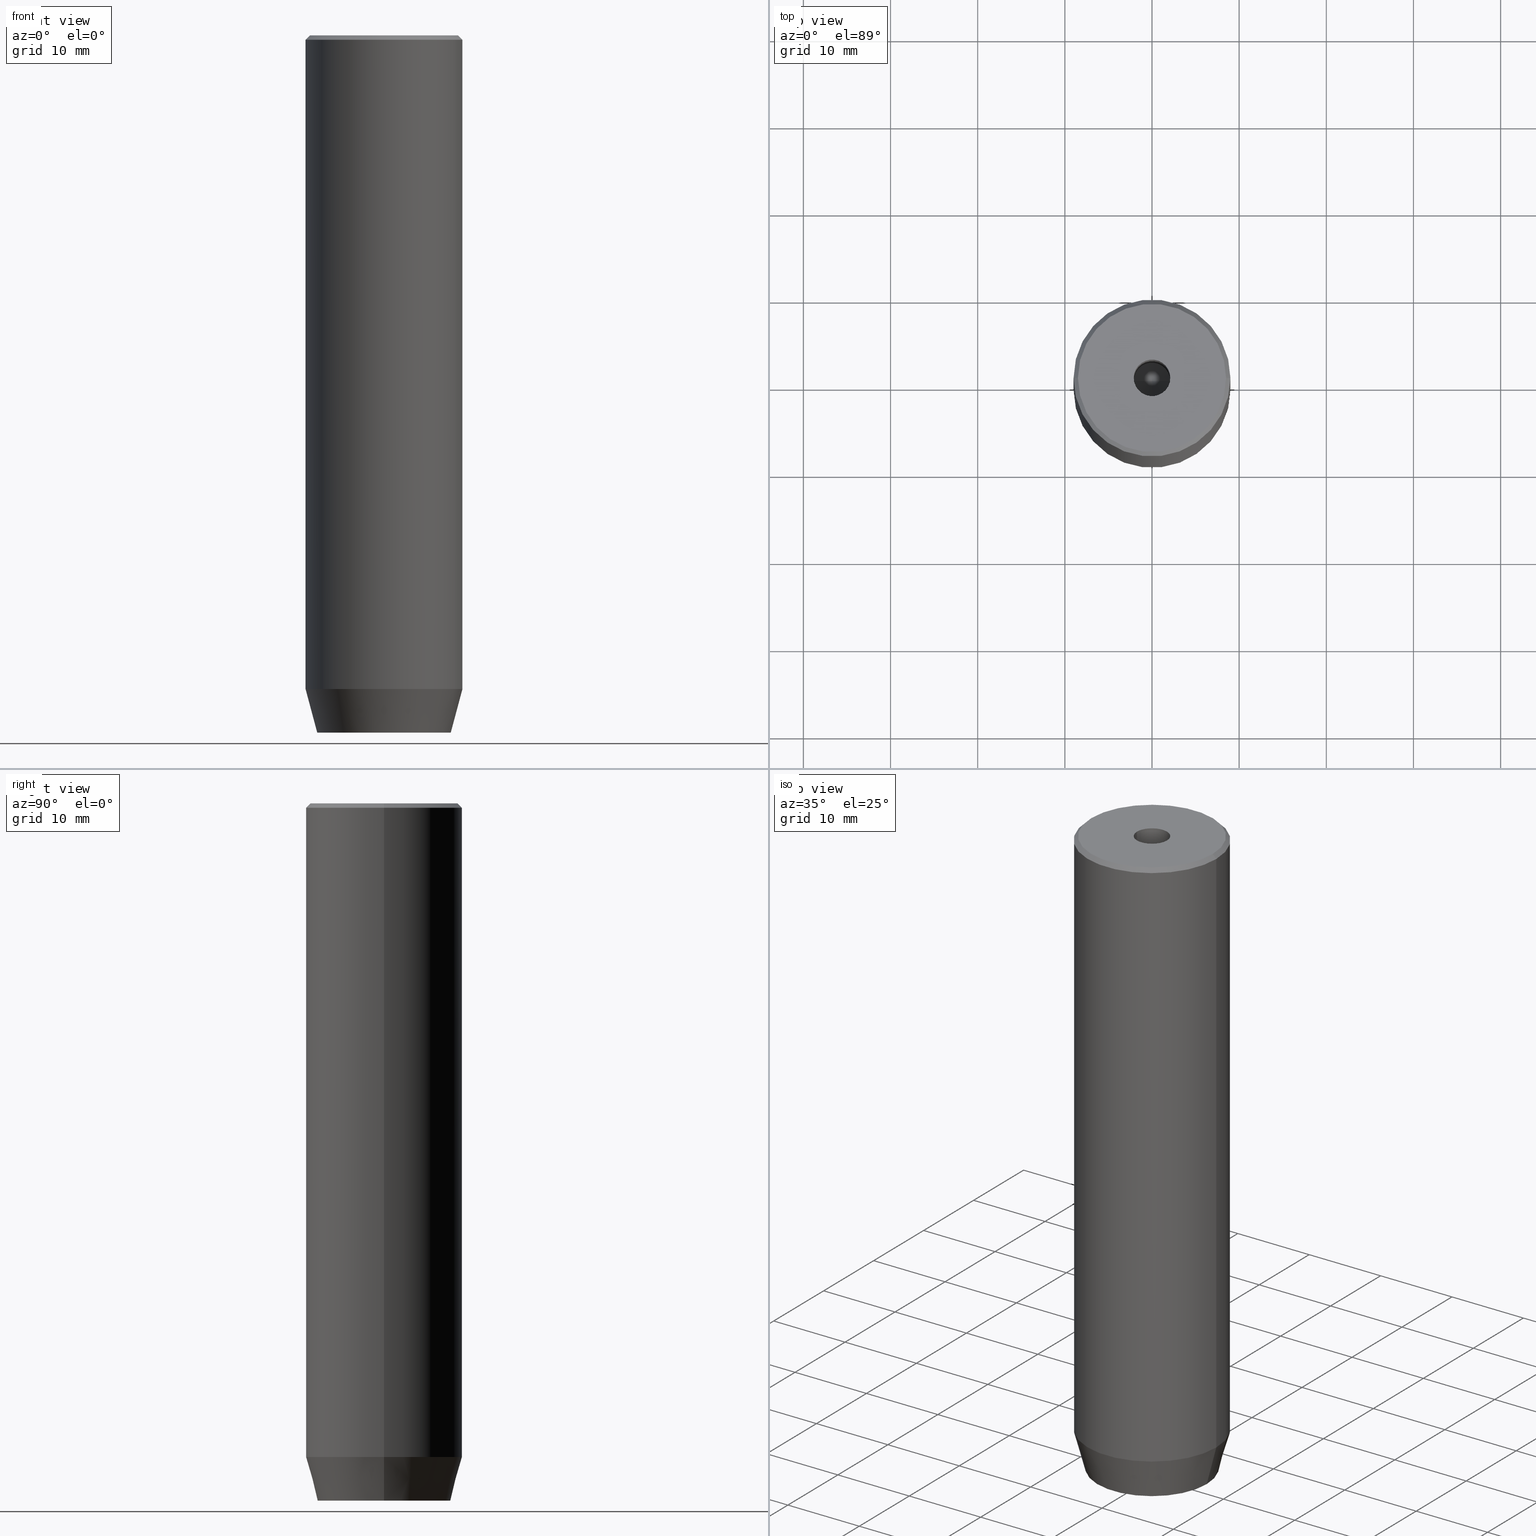
[diagram: canonical four-view strip — front | top / right | iso, engineering-drawing reading convention]
A machine part, canonical four-view strip (front | top / right | iso — engineering-drawing reading convention). The complete STEP part file that produces these views, byte-faithful:
ISO-10303-21;
HEADER;
FILE_DESCRIPTION (( 'STEP AP203' ),
    '1' );
FILE_NAME ('4954.STEP',
    '2024-01-02T20:37:34',
    ( '' ),
    ( '' ),
    'SwSTEP 2.0',
    'SolidWorks 2019',
    '' );
FILE_SCHEMA (( 'CONFIG_CONTROL_DESIGN' ));
ENDSEC;

DATA;
#1 = CONICAL_SURFACE ( 'NONE', #31, 8.499999999999980460, 0.7853981633974517207 ) ;
#2 = LINE ( 'NONE', #92, #220 ) ;
#3 = EDGE_CURVE ( 'NONE', #21, #324, #40, .T. ) ;
#4 = VERTEX_POINT ( 'NONE', #256 ) ;
#5 = AXIS2_PLACEMENT_3D ( 'NONE', #425, #422, #18 ) ;
#6 = FACE_OUTER_BOUND ( 'NONE', #194, .T. ) ;
#7 = CARTESIAN_POINT ( 'NONE',  ( -9.000000000000000000, 1.102182119232617714E-15, -75.00000000000001421 ) ) ;
#8 = CC_DESIGN_PERSON_AND_ORGANIZATION_ASSIGNMENT ( #567, #78, ( #375 ) ) ;
#9 = EDGE_LOOP ( 'NONE', ( #77, #69, #474, #432 ) ) ;
#10 = DIRECTION ( 'NONE',  ( 1.000000000000000000, 0.000000000000000000, 0.000000000000000000 ) ) ;
#11 = APPLICATION_CONTEXT ( 'configuration controlled 3d designs of mechanical parts and assemblies' ) ;
#12 = FACE_OUTER_BOUND ( 'NONE', #316, .T. ) ;
#13 = EDGE_CURVE ( 'NONE', #431, #65, #449, .T. ) ;
#14 = PRODUCT ( '4954', '4954', '', ( #236 ) ) ;
#15 = CARTESIAN_POINT ( 'NONE',  ( -8.499999999999980460, 0.000000000000000000, 0.000000000000000000 ) ) ;
#16 = DIRECTION ( 'NONE',  ( -0.4999999999999999445, 0.8660254037844387076, 0.000000000000000000 ) ) ;
#17 = VECTOR ( 'NONE', #272, 1000.000000000000000 ) ;
#18 = DIRECTION ( 'NONE',  ( -1.000000000000000000, 0.000000000000000000, -0.000000000000000000 ) ) ;
#19 = CARTESIAN_POINT ( 'NONE',  ( 3.000000000000000000, 0.000000000000000000, -77.20000000000001705 ) ) ;
#20 = EDGE_LOOP ( 'NONE', ( #495, #105, #25, #428 ) ) ;
#21 = VERTEX_POINT ( 'NONE', #126 ) ;
#22 = EDGE_CURVE ( 'NONE', #45, #287, #121, .T. ) ;
#23 = AXIS2_PLACEMENT_3D ( 'NONE', #280, #63, #103 ) ;
#24 = APPROVAL_DATE_TIME ( #308, #60 ) ;
#25 = ORIENTED_EDGE ( 'NONE', *, *, #3, .F. ) ;
#26 = ORIENTED_EDGE ( 'NONE', *, *, #64, .F. ) ;
#27 = APPROVAL_ROLE ( '' ) ;
#28 = DIRECTION ( 'NONE',  ( -0.000000000000000000, -0.000000000000000000, 1.000000000000000000 ) ) ;
#29 = EDGE_CURVE ( 'NONE', #174, #523, #359, .T. ) ;
#30 = CYLINDRICAL_SURFACE ( 'NONE', #86, 9.000000000000000000 ) ;
#31 = AXIS2_PLACEMENT_3D ( 'NONE', #576, #171, #483 ) ;
#32 = ORIENTED_EDGE ( 'NONE', *, *, #545, .F. ) ;
#33 = CARTESIAN_POINT ( 'NONE',  ( -9.000000000000000000, 1.102182119232617714E-15, 0.000000000000000000 ) ) ;
#34 = CARTESIAN_POINT ( 'NONE',  ( 0.000000000000000000, 0.000000000000000000, -80.00000000000001421 ) ) ;
#35 = VECTOR ( 'NONE', #151, 1000.000000000000000 ) ;
#36 = AXIS2_PLACEMENT_3D ( 'NONE', #385, #199, #470 ) ;
#37 = ORIENTED_EDGE ( 'NONE', *, *, #214, .F. ) ;
#38 = COORDINATED_UNIVERSAL_TIME_OFFSET ( 1, 0, .AHEAD. ) ;
#39 = CARTESIAN_POINT ( 'NONE',  ( 0.000000000000000000, 0.000000000000000000, 0.000000000000000000 ) ) ;
#40 = LINE ( 'NONE', #225, #389 ) ;
#41 = CARTESIAN_POINT ( 'NONE',  ( -7.660254037844385522, 1.020146339021394469E-15, -80.00000000000001421 ) ) ;
#42 = DIRECTION ( 'NONE',  ( -0.000000000000000000, -0.000000000000000000, 1.000000000000000000 ) ) ;
#43 = CIRCLE ( 'NONE', #524, 9.000000000000000000 ) ;
#44 = PLANE ( 'NONE',  #248 ) ;
#45 = VERTEX_POINT ( 'NONE', #405 ) ;
#46 = CIRCLE ( 'NONE', #412, 2.099999999999998757 ) ;
#47 = AXIS2_PLACEMENT_3D ( 'NONE', #56, #52, #511 ) ;
#48 = DIRECTION ( 'NONE',  ( -0.000000000000000000, -0.000000000000000000, 1.000000000000000000 ) ) ;
#49 = DIRECTION ( 'NONE',  ( 1.000000000000000000, 0.000000000000000000, 0.000000000000000000 ) ) ;
#50 = CARTESIAN_POINT ( 'NONE',  ( -1.499999999999999556, 2.598076211353316012, -80.00000000000001421 ) ) ;
#51 = DIRECTION ( 'NONE',  ( 1.000000000000000000, 0.000000000000000000, 0.000000000000000000 ) ) ;
#52 = DIRECTION ( 'NONE',  ( 0.000000000000000000, 0.000000000000000000, -1.000000000000000000 ) ) ;
#53 = ADVANCED_FACE ( 'NONE', ( #397 ), #1, .T. ) ;
#54 = EDGE_LOOP ( 'NONE', ( #278, #245, #442, #243 ) ) ;
#55 = FACE_OUTER_BOUND ( 'NONE', #476, .T. ) ;
#56 = CARTESIAN_POINT ( 'NONE',  ( 0.000000000000000000, 0.000000000000000000, -0.5000000000000160982 ) ) ;
#57 = ORIENTED_EDGE ( 'NONE', *, *, #545, .T. ) ;
#58 = FACE_OUTER_BOUND ( 'NONE', #152, .T. ) ;
#59 = CARTESIAN_POINT ( 'NONE',  ( 2.099999999999998757, 0.000000000000000000, -1.990051048614449116E-16 ) ) ;
#60 = APPROVAL ( #74, 'NEUR�EN�' ) ;
#61 =( NAMED_UNIT ( * ) SI_UNIT ( $, .STERADIAN. ) SOLID_ANGLE_UNIT ( ) );
#62 = VECTOR ( 'NONE', #439, 1000.000000000000000 ) ;
#63 = DIRECTION ( 'NONE',  ( 0.000000000000000000, 0.000000000000000000, -1.000000000000000000 ) ) ;
#64 = EDGE_CURVE ( 'NONE', #383, #424, #76, .T. ) ;
#65 = VERTEX_POINT ( 'NONE', #83 ) ;
#66 = CARTESIAN_POINT ( 'NONE',  ( -1.084202172485504434E-16, 3.464101615137754830, -77.20000000000001705 ) ) ;
#67 = AXIS2_PLACEMENT_3D ( 'NONE', #415, #276, #314 ) ;
#68 = ORIENTED_EDGE ( 'NONE', *, *, #467, .T. ) ;
#69 = ORIENTED_EDGE ( 'NONE', *, *, #13, .T. ) ;
#70 = APPROVAL_STATUS ( 'not_yet_approved' ) ;
#71 = VECTOR ( 'NONE', #406, 999.9999999999998863 ) ;
#72 = ORIENTED_EDGE ( 'NONE', *, *, #537, .F. ) ;
#73 = ADVANCED_FACE ( 'NONE', ( #582 ), #30, .T. ) ;
#74 = APPROVAL_STATUS ( 'not_yet_approved' ) ;
#75 = LINE ( 'NONE', #216, #451 ) ;
#76 = LINE ( 'NONE', #252, #207 ) ;
#77 = ORIENTED_EDGE ( 'NONE', *, *, #347, .F. ) ;
#78 = PERSON_AND_ORGANIZATION_ROLE ( 'creator' ) ;
#79 = DIRECTION ( 'NONE',  ( 0.2588190451025205729, 0.000000000000000000, 0.9659258262890683122 ) ) ;
#80 = ORIENTED_EDGE ( 'NONE', *, *, #143, .T. ) ;
#81 = SECURITY_CLASSIFICATION ( '', '', #534 ) ;
#82 = CARTESIAN_POINT ( 'NONE',  ( -1.500000000000000666, -2.598076211353316456, -80.00000000000001421 ) ) ;
#83 = CARTESIAN_POINT ( 'NONE',  ( -2.099999999999998757, 2.571758278209440478E-16, -1.990051048614449116E-16 ) ) ;
#84 = FACE_OUTER_BOUND ( 'NONE', #54, .T. ) ;
#85 = ORIENTED_EDGE ( 'NONE', *, *, #430, .T. ) ;
#86 = AXIS2_PLACEMENT_3D ( 'NONE', #392, #572, #346 ) ;
#87 = ORIENTED_EDGE ( 'NONE', *, *, #334, .F. ) ;
#88 = LINE ( 'NONE', #7, #140 ) ;
#89 = AXIS2_PLACEMENT_3D ( 'NONE', #517, #240, #561 ) ;
#90 = VECTOR ( 'NONE', #138, 1000.000000000000000 ) ;
#91 = EDGE_CURVE ( 'NONE', #341, #447, #486, .T. ) ;
#92 = CARTESIAN_POINT ( 'NONE',  ( 3.000000000000000000, -1.732050807568876527, -77.20000000000001705 ) ) ;
#93 = DIRECTION ( 'NONE',  ( 0.5000000000000001110, 0.8660254037844385966, -0.000000000000000000 ) ) ;
#94 = ORIENTED_EDGE ( 'NONE', *, *, #490, .F. ) ;
#95 = LINE ( 'NONE', #372, #71 ) ;
#96 = PLANE ( 'NONE',  #421 ) ;
#97 = CIRCLE ( 'NONE', #36, 9.000000000000000000 ) ;
#98 = CC_DESIGN_APPROVAL ( #60, ( #81 ) ) ;
#99 = DIRECTION ( 'NONE',  ( -0.000000000000000000, -0.000000000000000000, 1.000000000000000000 ) ) ;
#100 = FACE_OUTER_BOUND ( 'NONE', #20, .T. ) ;
#101 = APPROVAL_STATUS ( 'not_yet_approved' ) ;
#102 = CARTESIAN_POINT ( 'NONE',  ( 1.500000000000000222, -2.598076211353315568, -80.00000000000001421 ) ) ;
#103 = DIRECTION ( 'NONE',  ( -1.000000000000000000, 0.000000000000000000, 0.000000000000000000 ) ) ;
#104 = ADVANCED_FACE ( 'NONE', ( #227 ), #362, .T. ) ;
#105 = ORIENTED_EDGE ( 'NONE', *, *, #250, .F. ) ;
#106 = EDGE_CURVE ( 'NONE', #287, #45, #323, .T. ) ;
#107 = ORIENTED_EDGE ( 'NONE', *, *, #467, .F. ) ;
#108 = VERTEX_POINT ( 'NONE', #59 ) ;
#109 = FACE_OUTER_BOUND ( 'NONE', #492, .T. ) ;
#110 = VECTOR ( 'NONE', #133, 1000.000000000000000 ) ;
#111 = EDGE_LOOP ( 'NONE', ( #518, #114, #241, #292 ) ) ;
#112 = VERTEX_POINT ( 'NONE', #553 ) ;
#113 = FACE_OUTER_BOUND ( 'NONE', #335, .T. ) ;
#114 = ORIENTED_EDGE ( 'NONE', *, *, #134, .T. ) ;
#115 = ORIENTED_EDGE ( 'NONE', *, *, #238, .T. ) ;
#116 = CALENDAR_DATE ( 2024, 2, 1 ) ;
#117 = LINE ( 'NONE', #219, #468 ) ;
#118 = VERTEX_POINT ( 'NONE', #185 ) ;
#119 = APPROVAL_ROLE ( '' ) ;
#120 = CYLINDRICAL_SURFACE ( 'NONE', #146, 2.099999999999997424 ) ;
#121 = CIRCLE ( 'NONE', #455, 7.660254037844385522 ) ;
#122 = ORIENTED_EDGE ( 'NONE', *, *, #317, .F. ) ;
#123 = DATE_AND_TIME ( #165, #249 ) ;
#124 = DIRECTION ( 'NONE',  ( -0.000000000000000000, -0.000000000000000000, 1.000000000000000000 ) ) ;
#125 = ADVANCED_FACE ( 'NONE', ( #100 ), #587, .F. ) ;
#126 = CARTESIAN_POINT ( 'NONE',  ( 3.000000000000000000, -1.732050807568876527, -77.20000000000001705 ) ) ;
#127 = CONICAL_SURFACE ( 'NONE', #200, 2.099999999999996092, 1.029744258676652091 ) ;
#128 = COORDINATED_UNIVERSAL_TIME_OFFSET ( 1, 0, .AHEAD. ) ;
#129 = DIRECTION ( 'NONE',  ( -0.000000000000000000, 0.000000000000000000, -1.000000000000000000 ) ) ;
#130 = CC_DESIGN_PERSON_AND_ORGANIZATION_ASSIGNMENT ( #210, #525, ( #519 ) ) ;
#131 = ORIENTED_EDGE ( 'NONE', *, *, #537, .T. ) ;
#132 = CARTESIAN_POINT ( 'NONE',  ( 0.000000000000000000, 0.000000000000000000, -20.00000000000000000 ) ) ;
#133 = DIRECTION ( 'NONE',  ( -0.000000000000000000, -0.000000000000000000, -1.000000000000000000 ) ) ;
#134 = EDGE_CURVE ( 'NONE', #287, #394, #88, .T. ) ;
#135 = ORIENTED_EDGE ( 'NONE', *, *, #430, .F. ) ;
#136 = DIRECTION ( 'NONE',  ( 0.000000000000000000, 0.000000000000000000, -1.000000000000000000 ) ) ;
#137 = DIRECTION ( 'NONE',  ( -0.5000000000000001110, -0.8660254037844385966, 0.000000000000000000 ) ) ;
#138 = DIRECTION ( 'NONE',  ( -0.000000000000000000, -0.000000000000000000, 1.000000000000000000 ) ) ;
#139 = CARTESIAN_POINT ( 'NONE',  ( 0.000000000000000000, 0.000000000000000000, -75.00000000000001421 ) ) ;
#140 = VECTOR ( 'NONE', #559, 1000.000000000000114 ) ;
#141 = ORIENTED_EDGE ( 'NONE', *, *, #195, .T. ) ;
#142 = CARTESIAN_POINT ( 'NONE',  ( 0.000000000000000000, 7.660254037844385522, -80.00000000000001421 ) ) ;
#143 = EDGE_CURVE ( 'NONE', #4, #472, #313, .T. ) ;
#144 = CARTESIAN_POINT ( 'NONE',  ( 0.000000000000000000, 3.464101615137754830, -80.00000000000001421 ) ) ;
#145 = CIRCLE ( 'NONE', #297, 8.499999999999980460 ) ;
#146 = AXIS2_PLACEMENT_3D ( 'NONE', #305, #48, #10 ) ;
#147 = CC_DESIGN_APPROVAL ( #556, ( #519 ) ) ;
#148 =( NAMED_UNIT ( * ) PLANE_ANGLE_UNIT ( ) SI_UNIT ( $, .RADIAN. ) );
#149 = PRODUCT_DEFINITION_SHAPE ( 'NONE', 'NONE',  #375 ) ;
#150 = DIRECTION ( 'NONE',  ( 0.000000000000000000, -1.000000000000000000, 0.000000000000000000 ) ) ;
#151 = DIRECTION ( 'NONE',  ( -0.8660254037844385966, -0.5000000000000001110, 0.000000000000000000 ) ) ;
#152 = EDGE_LOOP ( 'NONE', ( #446, #304, #398, #310 ) ) ;
#153 = EDGE_CURVE ( 'NONE', #21, #543, #2, .T. ) ;
#154 = AXIS2_PLACEMENT_3D ( 'NONE', #142, #136, #504 ) ;
#155 = DIRECTION ( 'NONE',  ( -0.000000000000000000, -0.000000000000000000, -1.000000000000000000 ) ) ;
#156 = ORIENTED_EDGE ( 'NONE', *, *, #250, .T. ) ;
#157 = CARTESIAN_POINT ( 'NONE',  ( 8.499999999999980460, 1.071565949253932744E-15, 0.000000000000000000 ) ) ;
#158 = EDGE_CURVE ( 'NONE', #370, #447, #43, .T. ) ;
#159 = ORIENTED_EDGE ( 'NONE', *, *, #233, .T. ) ;
#160 = ORIENTED_EDGE ( 'NONE', *, *, #367, .T. ) ;
#161 = CARTESIAN_POINT ( 'NONE',  ( -2.168404344971008868E-16, -3.464101615137754830, -77.20000000000001705 ) ) ;
#162 = CONICAL_SURFACE ( 'NONE', #501, 9.000000000000000000, 0.2617993877991492413 ) ;
#163 = PRODUCT_RELATED_PRODUCT_CATEGORY ( 'detail', '', ( #14 ) ) ;
#164 = ORIENTED_EDGE ( 'NONE', *, *, #387, .T. ) ;
#165 = CALENDAR_DATE ( 2024, 2, 1 ) ;
#166 = CARTESIAN_POINT ( 'NONE',  ( -3.000000000000000000, -1.732050807568877859, -77.20000000000001705 ) ) ;
#167 = APPROVAL_PERSON_ORGANIZATION ( #258, #556, #27 ) ;
#168 = VECTOR ( 'NONE', #150, 1000.000000000000000 ) ;
#169 = EDGE_LOOP ( 'NONE', ( #332, #32, #388, #574, #107, #87 ) ) ;
#170 = DIRECTION ( 'NONE',  ( -0.8660254037844385966, 0.5000000000000001110, 0.000000000000000000 ) ) ;
#171 = DIRECTION ( 'NONE',  ( 0.000000000000000000, 0.000000000000000000, -1.000000000000000000 ) ) ;
#172 = ADVANCED_FACE ( 'NONE', ( #454 ), #162, .T. ) ;
#173 = DIRECTION ( 'NONE',  ( 1.000000000000000000, 0.000000000000000000, 0.000000000000000000 ) ) ;
#174 = VERTEX_POINT ( 'NONE', #452 ) ;
#175 = LINE ( 'NONE', #166, #282 ) ;
#176 = ORIENTED_EDGE ( 'NONE', *, *, #347, .T. ) ;
#177 = CARTESIAN_POINT ( 'NONE',  ( -9.000000000000000000, 1.102182119232617714E-15, -75.00000000000001421 ) ) ;
#178 = EDGE_CURVE ( 'NONE', #112, #394, #418, .T. ) ;
#179 = DIRECTION ( 'NONE',  ( 1.000000000000000000, 0.000000000000000000, 0.000000000000000000 ) ) ;
#180 = DIRECTION ( 'NONE',  ( -0.000000000000000000, -0.000000000000000000, 1.000000000000000000 ) ) ;
#181 = CARTESIAN_POINT ( 'NONE',  ( 1.500000000000000222, -2.598076211353315568, -77.20000000000001705 ) ) ;
#182 = FACE_BOUND ( 'NONE', #169, .T. ) ;
#183 = LINE ( 'NONE', #50, #298 ) ;
#184 = DIRECTION ( 'NONE',  ( 1.000000000000000000, 0.000000000000000000, 0.000000000000000000 ) ) ;
#185 = CARTESIAN_POINT ( 'NONE',  ( -3.000000000000000000, -1.732050807568877859, -80.00000000000001421 ) ) ;
#186 = ORIENTED_EDGE ( 'NONE', *, *, #64, .T. ) ;
#187 = DIRECTION ( 'NONE',  ( 0.8660254037844387076, 0.4999999999999999445, 0.000000000000000000 ) ) ;
#188 = APPLICATION_PROTOCOL_DEFINITION ( 'international standard', 'config_control_design', 1994, #11 ) ;
#189 = AXIS2_PLACEMENT_3D ( 'NONE', #289, #16, #190 ) ;
#190 = DIRECTION ( 'NONE',  ( -0.8660254037844387076, -0.4999999999999999445, 0.000000000000000000 ) ) ;
#191 = ADVANCED_FACE ( 'NONE', ( #408 ), #373, .F. ) ;
#192 =( LENGTH_UNIT ( ) NAMED_UNIT ( * ) SI_UNIT ( .MILLI., .METRE. ) );
#193 = LINE ( 'NONE', #329, #378 ) ;
#194 = EDGE_LOOP ( 'NONE', ( #339, #306 ) ) ;
#195 = EDGE_CURVE ( 'NONE', #424, #203, #183, .T. ) ;
#196 = CLOSED_SHELL ( 'NONE', ( #381, #516, #53, #172, #73, #423, #273, #264, #104, #499, #510, #255, #191, #125, #364, #223, #573, #471, #358 ) ) ;
#197 = DIRECTION ( 'NONE',  ( -0.000000000000000000, -0.000000000000000000, 1.000000000000000000 ) ) ;
#198 = ORIENTED_EDGE ( 'NONE', *, *, #290, .T. ) ;
#199 = DIRECTION ( 'NONE',  ( -0.000000000000000000, -0.000000000000000000, 1.000000000000000000 ) ) ;
#200 = AXIS2_PLACEMENT_3D ( 'NONE', #379, #197, #337 ) ;
#201 = LOCAL_TIME ( 21, 37, 34.00000000000000000, #386 ) ;
#202 = LINE ( 'NONE', #563, #505 ) ;
#203 = VERTEX_POINT ( 'NONE', #144 ) ;
#204 = EDGE_LOOP ( 'NONE', ( #57, #26, #72, #205 ) ) ;
#205 = ORIENTED_EDGE ( 'NONE', *, *, #317, .T. ) ;
#206 = DIRECTION ( 'NONE',  ( -0.000000000000000000, -0.000000000000000000, 1.000000000000000000 ) ) ;
#207 = VECTOR ( 'NONE', #208, 1000.000000000000000 ) ;
#208 = DIRECTION ( 'NONE',  ( -0.000000000000000000, -0.000000000000000000, -1.000000000000000000 ) ) ;
#209 = ORIENTED_EDGE ( 'NONE', *, *, #407, .T. ) ;
#210 = PERSON_AND_ORGANIZATION ( #482, #429 ) ;
#211 = CARTESIAN_POINT ( 'NONE',  ( 8.499999999999980460, 1.040949779275247773E-15, 0.000000000000000000 ) ) ;
#212 = CIRCLE ( 'NONE', #441, 2.099999999999996092 ) ;
#213 =( GEOMETRIC_REPRESENTATION_CONTEXT ( 3 ) GLOBAL_UNCERTAINTY_ASSIGNED_CONTEXT ( ( #371 ) ) GLOBAL_UNIT_ASSIGNED_CONTEXT ( ( #192, #148, #61 ) ) REPRESENTATION_CONTEXT ( 'NONE', 'WORKASPACE' ) );
#214 = EDGE_CURVE ( 'NONE', #112, #370, #366, .T. ) ;
#215 = CALENDAR_DATE ( 2024, 2, 1 ) ;
#216 = CARTESIAN_POINT ( 'NONE',  ( 9.000000000000000000, 0.000000000000000000, -75.00000000000001421 ) ) ;
#217 = DIRECTION ( 'NONE',  ( -0.8660254037844385966, -0.5000000000000001110, 0.000000000000000000 ) ) ;
#218 = DATE_AND_TIME ( #493, #541 ) ;
#219 = CARTESIAN_POINT ( 'NONE',  ( 1.500000000000000222, 2.598076211353315568, -77.20000000000001705 ) ) ;
#220 = VECTOR ( 'NONE', #557, 1000.000000000000000 ) ;
#221 = CARTESIAN_POINT ( 'NONE',  ( 3.000000000000000000, 1.732050807568876527, -77.20000000000001705 ) ) ;
#222 = ORIENTED_EDGE ( 'NONE', *, *, #29, .F. ) ;
#223 = ADVANCED_FACE ( 'NONE', ( #319 ), #96, .F. ) ;
#224 = DIRECTION ( 'NONE',  ( 1.000000000000000000, 0.000000000000000000, -0.000000000000000000 ) ) ;
#225 = CARTESIAN_POINT ( 'NONE',  ( 1.500000000000000222, -2.598076211353315568, -77.20000000000001705 ) ) ;
#226 = AXIS2_PLACEMENT_3D ( 'NONE', #139, #322, #49 ) ;
#227 = FACE_OUTER_BOUND ( 'NONE', #533, .T. ) ;
#228 = DIRECTION ( 'NONE',  ( 1.000000000000000000, 0.000000000000000000, 0.000000000000000000 ) ) ;
#229 = DIRECTION ( 'NONE',  ( 0.8571673007021111124, 0.000000000000000000, 0.5150380749100562650 ) ) ;
#230 = CARTESIAN_POINT ( 'NONE',  ( 0.000000000000000000, 0.000000000000000000, 0.000000000000000000 ) ) ;
#231 = DIRECTION ( 'NONE',  ( -0.000000000000000000, -0.000000000000000000, 1.000000000000000000 ) ) ;
#232 = AXIS2_PLACEMENT_3D ( 'NONE', #507, #457, #51 ) ;
#233 = EDGE_CURVE ( 'NONE', #447, #370, #469, .T. ) ;
#234 = APPROVAL_PERSON_ORGANIZATION ( #262, #60, #119 ) ;
#235 = LINE ( 'NONE', #453, #479 ) ;
#236 = MECHANICAL_CONTEXT ( 'NONE', #288, 'mechanical' ) ;
#237 = DIRECTION ( 'NONE',  ( 0.8660254037844385966, 0.5000000000000001110, 0.000000000000000000 ) ) ;
#238 = EDGE_CURVE ( 'NONE', #174, #21, #326, .T. ) ;
#239 = AXIS2_PLACEMENT_3D ( 'NONE', #39, #124, #299 ) ;
#240 = DIRECTION ( 'NONE',  ( 0.000000000000000000, 0.000000000000000000, 1.000000000000000000 ) ) ;
#241 = ORIENTED_EDGE ( 'NONE', *, *, #178, .F. ) ;
#242 = LINE ( 'NONE', #102, #35 ) ;
#243 = ORIENTED_EDGE ( 'NONE', *, *, #158, .T. ) ;
#244 = LINE ( 'NONE', #281, #283 ) ;
#245 = ORIENTED_EDGE ( 'NONE', *, *, #551, .T. ) ;
#246 = EDGE_CURVE ( 'NONE', #472, #108, #193, .T. ) ;
#247 = ORIENTED_EDGE ( 'NONE', *, *, #153, .F. ) ;
#248 = AXIS2_PLACEMENT_3D ( 'NONE', #396, #224, #129 ) ;
#249 = LOCAL_TIME ( 21, 37, 34.00000000000000000, #128 ) ;
#250 = EDGE_CURVE ( 'NONE', #324, #303, #202, .T. ) ;
#251 = DIRECTION ( 'NONE',  ( -0.000000000000000000, -0.000000000000000000, 1.000000000000000000 ) ) ;
#252 = CARTESIAN_POINT ( 'NONE',  ( -3.000000000000000888, 1.732050807568876527, -77.20000000000001705 ) ) ;
#253 = COORDINATED_UNIVERSAL_TIME_OFFSET ( 1, 0, .AHEAD. ) ;
#254 = CARTESIAN_POINT ( 'NONE',  ( 1.500000000000000222, 2.598076211353315568, -80.00000000000001421 ) ) ;
#255 = ADVANCED_FACE ( 'NONE', ( #522 ), #340, .F. ) ;
#256 = CARTESIAN_POINT ( 'NONE',  ( -5.207640850796248781E-15, 0.000000000000000000, -21.26180729995787999 ) ) ;
#257 = EDGE_LOOP ( 'NONE', ( #565, #94, #484, #209 ) ) ;
#258 = PERSON_AND_ORGANIZATION ( #482, #429 ) ;
#259 = AXIS2_PLACEMENT_3D ( 'NONE', #509, #279, #463 ) ;
#260 = LINE ( 'NONE', #82, #277 ) ;
#261 = CC_DESIGN_SECURITY_CLASSIFICATION ( #81, ( #519 ) ) ;
#262 = PERSON_AND_ORGANIZATION ( #482, #429 ) ;
#263 = LINE ( 'NONE', #211, #514 ) ;
#264 = ADVANCED_FACE ( 'NONE', ( #84 ), #532, .T. ) ;
#265 = DIRECTION ( 'NONE',  ( 0.8660254037844385966, -0.5000000000000001110, 0.000000000000000000 ) ) ;
#266 = VERTEX_POINT ( 'NONE', #349 ) ;
#267 = CC_DESIGN_DATE_AND_TIME_ASSIGNMENT ( #296, #438, ( #81 ) ) ;
#268 = CARTESIAN_POINT ( 'NONE',  ( 0.000000000000000000, 0.000000000000000000, -75.00000000000001421 ) ) ;
#269 = PLANE ( 'NONE',  #154 ) ;
#270 = DIRECTION ( 'NONE',  ( 1.000000000000000000, 0.000000000000000000, 0.000000000000000000 ) ) ;
#271 = ORIENTED_EDGE ( 'NONE', *, *, #450, .F. ) ;
#272 = DIRECTION ( 'NONE',  ( -0.8571673007021111124, 1.049727191138617217E-16, 0.5150380749100562650 ) ) ;
#273 = ADVANCED_FACE ( 'NONE', ( #485, #113 ), #497, .T. ) ;
#274 = DIRECTION ( 'NONE',  ( -0.8660254037844385966, 0.5000000000000001110, 0.000000000000000000 ) ) ;
#275 = CARTESIAN_POINT ( 'NONE',  ( -9.000000000000000000, 1.102182119232617714E-15, -0.5000000000000160982 ) ) ;
#276 = DIRECTION ( 'NONE',  ( -0.000000000000000000, -0.000000000000000000, 1.000000000000000000 ) ) ;
#277 = VECTOR ( 'NONE', #170, 1000.000000000000000 ) ;
#278 = ORIENTED_EDGE ( 'NONE', *, *, #342, .F. ) ;
#279 = DIRECTION ( 'NONE',  ( -0.000000000000000000, -0.000000000000000000, 1.000000000000000000 ) ) ;
#280 = CARTESIAN_POINT ( 'NONE',  ( 0.000000000000000000, 0.000000000000000000, 0.000000000000000000 ) ) ;
#281 = CARTESIAN_POINT ( 'NONE',  ( -3.000000000000000444, -7.511572993685800087E-16, -77.20000000000001705 ) ) ;
#282 = VECTOR ( 'NONE', #489, 1000.000000000000000 ) ;
#283 = VECTOR ( 'NONE', #521, 1000.000000000000000 ) ;
#284 = LOCAL_TIME ( 21, 37, 34.00000000000000000, #38 ) ;
#285 = CARTESIAN_POINT ( 'NONE',  ( 3.000000000000000000, -1.732050807568876527, -80.00000000000001421 ) ) ;
#286 = AXIS2_PLACEMENT_3D ( 'NONE', #526, #351, #538 ) ;
#287 = VERTEX_POINT ( 'NONE', #41 ) ;
#288 = APPLICATION_CONTEXT ( 'configuration controlled 3d designs of mechanical parts and assemblies' ) ;
#289 = CARTESIAN_POINT ( 'NONE',  ( -1.499999999999999556, 2.598076211353316012, -77.20000000000001705 ) ) ;
#290 = EDGE_CURVE ( 'NONE', #341, #512, #145, .T. ) ;
#291 = EDGE_LOOP ( 'NONE', ( #536, #222, #414, #437 ) ) ;
#292 = ORIENTED_EDGE ( 'NONE', *, *, #327, .F. ) ;
#293 = PERSON_AND_ORGANIZATION_ROLE ( 'design_owner' ) ;
#294 = ORIENTED_EDGE ( 'NONE', *, *, #342, .T. ) ;
#295 = ORIENTED_EDGE ( 'NONE', *, *, #407, .F. ) ;
#296 = DATE_AND_TIME ( #116, #284 ) ;
#297 = AXIS2_PLACEMENT_3D ( 'NONE', #345, #251, #399 ) ;
#298 = VECTOR ( 'NONE', #187, 999.9999999999998863 ) ;
#299 = DIRECTION ( 'NONE',  ( 1.000000000000000000, 0.000000000000000000, 0.000000000000000000 ) ) ;
#300 = ORIENTED_EDGE ( 'NONE', *, *, #134, .F. ) ;
#301 = EDGE_CURVE ( 'NONE', #527, #174, #117, .T. ) ;
#302 = DIRECTION ( 'NONE',  ( 1.000000000000000000, 0.000000000000000000, 0.000000000000000000 ) ) ;
#303 = VERTEX_POINT ( 'NONE', #448 ) ;
#304 = ORIENTED_EDGE ( 'NONE', *, *, #290, .F. ) ;
#305 = CARTESIAN_POINT ( 'NONE',  ( 0.000000000000000000, 0.000000000000000000, 0.000000000000000000 ) ) ;
#306 = ORIENTED_EDGE ( 'NONE', *, *, #106, .F. ) ;
#307 = ORIENTED_EDGE ( 'NONE', *, *, #178, .T. ) ;
#308 = DATE_AND_TIME ( #215, #583 ) ;
#309 = CYLINDRICAL_SURFACE ( 'NONE', #344, 2.099999999999997424 ) ;
#310 = ORIENTED_EDGE ( 'NONE', *, *, #158, .F. ) ;
#311 = CC_DESIGN_PERSON_AND_ORGANIZATION_ASSIGNMENT ( #580, #488, ( #81 ) ) ;
#312 = DIRECTION ( 'NONE',  ( 1.000000000000000000, 0.000000000000000000, 0.000000000000000000 ) ) ;
#313 = LINE ( 'NONE', #503, #475 ) ;
#314 = DIRECTION ( 'NONE',  ( 1.000000000000000000, 0.000000000000000000, 0.000000000000000000 ) ) ;
#315 = VECTOR ( 'NONE', #578, 1000.000000000000000 ) ;
#316 = EDGE_LOOP ( 'NONE', ( #569, #85, #176 ) ) ;
#317 = EDGE_CURVE ( 'NONE', #266, #118, #175, .T. ) ;
#318 = CARTESIAN_POINT ( 'NONE',  ( -2.099999999999996092, 2.571758278209436534E-16, -20.00000000000000000 ) ) ;
#319 = FACE_OUTER_BOUND ( 'NONE', #291, .T. ) ;
#320 = CARTESIAN_POINT ( 'NONE',  ( 3.000000000000000000, 0.000000000000000000, -80.00000000000001421 ) ) ;
#321 = APPROVAL ( #101, 'NEUR�EN�' ) ;
#322 = DIRECTION ( 'NONE',  ( -0.000000000000000000, -0.000000000000000000, 1.000000000000000000 ) ) ;
#323 = CIRCLE ( 'NONE', #67, 7.660254037844385522 ) ;
#324 = VERTEX_POINT ( 'NONE', #161 ) ;
#325 = CARTESIAN_POINT ( 'NONE',  ( -1.500000000000000666, -2.598076211353316456, -77.20000000000001705 ) ) ;
#326 = LINE ( 'NONE', #19, #168 ) ;
#327 = EDGE_CURVE ( 'NONE', #45, #112, #75, .T. ) ;
#328 = APPROVAL_ROLE ( '' ) ;
#329 = CARTESIAN_POINT ( 'NONE',  ( 2.099999999999997424, 0.000000000000000000, 0.000000000000000000 ) ) ;
#330 = PERSON_AND_ORGANIZATION ( #482, #429 ) ;
#331 = DIRECTION ( 'NONE',  ( -0.000000000000000000, -0.000000000000000000, 1.000000000000000000 ) ) ;
#332 = ORIENTED_EDGE ( 'NONE', *, *, #195, .F. ) ;
#333 = FACE_OUTER_BOUND ( 'NONE', #380, .T. ) ;
#334 = EDGE_CURVE ( 'NONE', #203, #523, #542, .T. ) ;
#335 = EDGE_LOOP ( 'NONE', ( #198, #436 ) ) ;
#336 = EDGE_LOOP ( 'NONE', ( #160, #122, #539, #156 ) ) ;
#337 = DIRECTION ( 'NONE',  ( 1.000000000000000000, 0.000000000000000000, 0.000000000000000000 ) ) ;
#338 = ORIENTED_EDGE ( 'NONE', *, *, #387, .F. ) ;
#339 = ORIENTED_EDGE ( 'NONE', *, *, #22, .F. ) ;
#340 = PLANE ( 'NONE',  #286 ) ;
#341 = VERTEX_POINT ( 'NONE', #404 ) ;
#342 = EDGE_CURVE ( 'NONE', #394, #447, #391, .T. ) ;
#343 = EDGE_LOOP ( 'NONE', ( #68, #247, #443, #487 ) ) ;
#344 = AXIS2_PLACEMENT_3D ( 'NONE', #494, #206, #571 ) ;
#345 = CARTESIAN_POINT ( 'NONE',  ( 0.000000000000000000, 0.000000000000000000, 0.000000000000000000 ) ) ;
#346 = DIRECTION ( 'NONE',  ( 1.000000000000000000, 0.000000000000000000, 0.000000000000000000 ) ) ;
#347 = EDGE_CURVE ( 'NONE', #431, #472, #212, .T. ) ;
#348 = ORIENTED_EDGE ( 'NONE', *, *, #3, .T. ) ;
#349 = CARTESIAN_POINT ( 'NONE',  ( -3.000000000000000000, -1.732050807568877859, -77.20000000000001705 ) ) ;
#350 = EDGE_LOOP ( 'NONE', ( #307, #294, #159, #37 ) ) ;
#351 = DIRECTION ( 'NONE',  ( -1.000000000000000000, -2.503857664561933362E-16, 0.000000000000000000 ) ) ;
#352 = ORIENTED_EDGE ( 'NONE', *, *, #355, .T. ) ;
#353 = VECTOR ( 'NONE', #374, 1000.000000000000000 ) ;
#354 = DIRECTION ( 'NONE',  ( 0.000000000000000000, -0.000000000000000000, 1.000000000000000000 ) ) ;
#355 = EDGE_CURVE ( 'NONE', #512, #370, #263, .T. ) ;
#356 = ORIENTED_EDGE ( 'NONE', *, *, #301, .T. ) ;
#357 = CARTESIAN_POINT ( 'NONE',  ( -2.099999999999996092, 2.571758278209436534E-16, -20.00000000000000000 ) ) ;
#358 = ADVANCED_FACE ( 'NONE', ( #435 ), #309, .F. ) ;
#359 = LINE ( 'NONE', #221, #110 ) ;
#360 = LINE ( 'NONE', #325, #459 ) ;
#361 = VECTOR ( 'NONE', #400, 1000.000000000000000 ) ;
#362 = CONICAL_SURFACE ( 'NONE', #579, 9.000000000000000000, 0.2617993877991492413 ) ;
#363 = CARTESIAN_POINT ( 'NONE',  ( 0.000000000000000000, 0.000000000000000000, -0.5000000000000160982 ) ) ;
#364 = ADVANCED_FACE ( 'NONE', ( #445 ), #44, .F. ) ;
#365 = LINE ( 'NONE', #318, #17 ) ;
#366 = LINE ( 'NONE', #550, #90 ) ;
#367 = EDGE_CURVE ( 'NONE', #303, #118, #260, .T. ) ;
#368 = CARTESIAN_POINT ( 'NONE',  ( -3.000000000000000888, 1.732050807568876527, -80.00000000000001421 ) ) ;
#369 = DIRECTION ( 'NONE',  ( 1.000000000000000000, 0.000000000000000000, 0.000000000000000000 ) ) ;
#370 = VERTEX_POINT ( 'NONE', #568 ) ;
#371 = UNCERTAINTY_MEASURE_WITH_UNIT (LENGTH_MEASURE( 1.000000000000000082E-05 ), #192, 'distance_accuracy_value', 'NONE');
#372 = CARTESIAN_POINT ( 'NONE',  ( -1.499999999999999556, 2.598076211353316012, -77.20000000000001705 ) ) ;
#373 = PLANE ( 'NONE',  #560 ) ;
#374 = DIRECTION ( 'NONE',  ( -2.503857664561932376E-16, 1.000000000000000000, 0.000000000000000000 ) ) ;
#375 = PRODUCT_DEFINITION ( 'NEZN�M�', '', #519, #393 ) ;
#376 = DIRECTION ( 'NONE',  ( -0.000000000000000000, -0.000000000000000000, 1.000000000000000000 ) ) ;
#377 = CIRCLE ( 'NONE', #549, 8.499999999999980460 ) ;
#378 = VECTOR ( 'NONE', #331, 1000.000000000000000 ) ;
#379 = CARTESIAN_POINT ( 'NONE',  ( 0.000000000000000000, 0.000000000000000000, -20.00000000000000000 ) ) ;
#380 = EDGE_LOOP ( 'NONE', ( #141, #500, #338, #186 ) ) ;
#381 = ADVANCED_FACE ( 'NONE', ( #535 ), #120, .F. ) ;
#382 = CARTESIAN_POINT ( 'NONE',  ( -3.000000000000000444, -7.511572993685800087E-16, -80.00000000000001421 ) ) ;
#383 = VERTEX_POINT ( 'NONE', #586 ) ;
#384 = CONICAL_SURFACE ( 'NONE', #23, 8.499999999999980460, 0.7853981633974517207 ) ;
#385 = CARTESIAN_POINT ( 'NONE',  ( 0.000000000000000000, 0.000000000000000000, -75.00000000000001421 ) ) ;
#386 = COORDINATED_UNIVERSAL_TIME_OFFSET ( 1, 0, .AHEAD. ) ;
#387 = EDGE_CURVE ( 'NONE', #383, #527, #95, .T. ) ;
#388 = ORIENTED_EDGE ( 'NONE', *, *, #367, .F. ) ;
#389 = VECTOR ( 'NONE', #217, 1000.000000000000000 ) ;
#390 = APPROVAL_DATE_TIME ( #218, #321 ) ;
#391 = LINE ( 'NONE', #33, #315 ) ;
#392 = CARTESIAN_POINT ( 'NONE',  ( 0.000000000000000000, 0.000000000000000000, 0.000000000000000000 ) ) ;
#393 = DESIGN_CONTEXT ( 'detailed design', #11, 'design' ) ;
#394 = VERTEX_POINT ( 'NONE', #177 ) ;
#395 = CIRCLE ( 'NONE', #259, 2.099999999999996092 ) ;
#396 = CARTESIAN_POINT ( 'NONE',  ( 3.000000000000000000, 0.000000000000000000, -77.20000000000001705 ) ) ;
#397 = FACE_OUTER_BOUND ( 'NONE', #554, .T. ) ;
#398 = ORIENTED_EDGE ( 'NONE', *, *, #91, .T. ) ;
#399 = DIRECTION ( 'NONE',  ( 1.000000000000000000, 0.000000000000000000, 0.000000000000000000 ) ) ;
#400 = DIRECTION ( 'NONE',  ( -0.000000000000000000, -0.000000000000000000, 1.000000000000000000 ) ) ;
#401 = EDGE_CURVE ( 'NONE', #527, #203, #235, .T. ) ;
#402 = DATE_AND_TIME ( #444, #201 ) ;
#403 = AXIS2_PLACEMENT_3D ( 'NONE', #181, #506, #237 ) ;
#404 = CARTESIAN_POINT ( 'NONE',  ( -8.499999999999980460, 0.000000000000000000, 0.000000000000000000 ) ) ;
#405 = CARTESIAN_POINT ( 'NONE',  ( 7.660254037844385522, 0.000000000000000000, -80.00000000000001421 ) ) ;
#406 = DIRECTION ( 'NONE',  ( 0.8660254037844387076, 0.4999999999999999445, 0.000000000000000000 ) ) ;
#407 = EDGE_CURVE ( 'NONE', #108, #65, #46, .T. ) ;
#408 = FACE_OUTER_BOUND ( 'NONE', #336, .T. ) ;
#409 = CARTESIAN_POINT ( 'NONE',  ( 0.000000000000000000, 0.000000000000000000, -75.00000000000001421 ) ) ;
#410 = EDGE_CURVE ( 'NONE', #324, #266, #360, .T. ) ;
#411 = LINE ( 'NONE', #320, #564 ) ;
#412 = AXIS2_PLACEMENT_3D ( 'NONE', #552, #180, #228 ) ;
#413 = CARTESIAN_POINT ( 'NONE',  ( -1.500000000000000666, -2.598076211353316456, -77.20000000000001705 ) ) ;
#414 = ORIENTED_EDGE ( 'NONE', *, *, #301, .F. ) ;
#415 = CARTESIAN_POINT ( 'NONE',  ( 0.000000000000000000, 0.000000000000000000, -80.00000000000001421 ) ) ;
#416 = CC_DESIGN_DATE_AND_TIME_ASSIGNMENT ( #402, #570, ( #375 ) ) ;
#417 = COORDINATED_UNIVERSAL_TIME_OFFSET ( 1, 0, .AHEAD. ) ;
#418 = CIRCLE ( 'NONE', #226, 9.000000000000000000 ) ;
#419 = AXIS2_PLACEMENT_3D ( 'NONE', #132, #584, #184 ) ;
#420 = APPROVAL_PERSON_ORGANIZATION ( #477, #321, #328 ) ;
#421 = AXIS2_PLACEMENT_3D ( 'NONE', #508, #93, #274 ) ;
#422 = DIRECTION ( 'NONE',  ( 0.000000000000000000, 0.000000000000000000, -1.000000000000000000 ) ) ;
#423 = ADVANCED_FACE ( 'NONE', ( #182, #6 ), #269, .T. ) ;
#424 = VERTEX_POINT ( 'NONE', #368 ) ;
#425 = CARTESIAN_POINT ( 'NONE',  ( 0.000000000000000000, 0.000000000000000000, -77.20000000000001705 ) ) ;
#426 = ORIENTED_EDGE ( 'NONE', *, *, #490, .T. ) ;
#427 = CC_DESIGN_PERSON_AND_ORGANIZATION_ASSIGNMENT ( #330, #293, ( #14 ) ) ;
#428 = ORIENTED_EDGE ( 'NONE', *, *, #153, .T. ) ;
#429 = ORGANIZATION ( 'NEUR�EN�', 'NEUR�EN�', '' ) ;
#430 = EDGE_CURVE ( 'NONE', #4, #431, #365, .T. ) ;
#431 = VERTEX_POINT ( 'NONE', #357 ) ;
#432 = ORIENTED_EDGE ( 'NONE', *, *, #246, .F. ) ;
#433 = SHAPE_DEFINITION_REPRESENTATION ( #149, #458 ) ;
#434 = CC_DESIGN_PERSON_AND_ORGANIZATION_ASSIGNMENT ( #480, #531, ( #519 ) ) ;
#435 = FACE_OUTER_BOUND ( 'NONE', #257, .T. ) ;
#436 = ORIENTED_EDGE ( 'NONE', *, *, #461, .T. ) ;
#437 = ORIENTED_EDGE ( 'NONE', *, *, #401, .T. ) ;
#438 = DATE_TIME_ROLE ( 'classification_date' ) ;
#439 = DIRECTION ( 'NONE',  ( 0.8660254037844385966, -0.5000000000000001110, 0.000000000000000000 ) ) ;
#440 = CARTESIAN_POINT ( 'NONE',  ( -2.099999999999997424, 2.571758278209438506E-16, 0.000000000000000000 ) ) ;
#441 = AXIS2_PLACEMENT_3D ( 'NONE', #575, #28, #173 ) ;
#442 = ORIENTED_EDGE ( 'NONE', *, *, #214, .T. ) ;
#443 = ORIENTED_EDGE ( 'NONE', *, *, #238, .F. ) ;
#444 = CALENDAR_DATE ( 2024, 2, 1 ) ;
#445 = FACE_OUTER_BOUND ( 'NONE', #343, .T. ) ;
#446 = ORIENTED_EDGE ( 'NONE', *, *, #355, .F. ) ;
#447 = VERTEX_POINT ( 'NONE', #275 ) ;
#448 = CARTESIAN_POINT ( 'NONE',  ( -2.168404344971008868E-16, -3.464101615137754830, -80.00000000000001421 ) ) ;
#449 = LINE ( 'NONE', #440, #361 ) ;
#450 = EDGE_CURVE ( 'NONE', #65, #108, #491, .T. ) ;
#451 = VECTOR ( 'NONE', #79, 1000.000000000000114 ) ;
#452 = CARTESIAN_POINT ( 'NONE',  ( 3.000000000000000000, 1.732050807568876527, -77.20000000000001705 ) ) ;
#453 = CARTESIAN_POINT ( 'NONE',  ( -1.084202172485504434E-16, 3.464101615137754830, -77.20000000000001705 ) ) ;
#454 = FACE_OUTER_BOUND ( 'NONE', #111, .T. ) ;
#455 = AXIS2_PLACEMENT_3D ( 'NONE', #34, #42, #179 ) ;
#456 = DIRECTION ( 'NONE',  ( 0.8660254037844385966, -0.5000000000000001110, 0.000000000000000000 ) ) ;
#457 = DIRECTION ( 'NONE',  ( -0.000000000000000000, -0.000000000000000000, 1.000000000000000000 ) ) ;
#458 = ADVANCED_BREP_SHAPE_REPRESENTATION ( '4954', ( #460, #89 ), #213 ) ;
#459 = VECTOR ( 'NONE', #555, 1000.000000000000000 ) ;
#460 = MANIFOLD_SOLID_BREP ( 'Vrt�k z�vitn�ku pro M5 z�vit1', #196 ) ;
#461 = EDGE_CURVE ( 'NONE', #512, #341, #377, .T. ) ;
#462 = ORIENTED_EDGE ( 'NONE', *, *, #91, .F. ) ;
#463 = DIRECTION ( 'NONE',  ( 1.000000000000000000, 0.000000000000000000, 0.000000000000000000 ) ) ;
#464 = DIRECTION ( 'NONE',  ( 1.000000000000000000, 0.000000000000000000, 0.000000000000000000 ) ) ;
#465 = LINE ( 'NONE', #382, #353 ) ;
#466 = PLANE ( 'NONE',  #5 ) ;
#467 = EDGE_CURVE ( 'NONE', #523, #543, #411, .T. ) ;
#468 = VECTOR ( 'NONE', #265, 1000.000000000000000 ) ;
#469 = CIRCLE ( 'NONE', #47, 9.000000000000000000 ) ;
#470 = DIRECTION ( 'NONE',  ( 1.000000000000000000, 0.000000000000000000, 0.000000000000000000 ) ) ;
#471 = ADVANCED_FACE ( 'NONE', ( #55 ), #528, .F. ) ;
#472 = VERTEX_POINT ( 'NONE', #502 ) ;
#473 = APPLICATION_PROTOCOL_DEFINITION ( 'international standard', 'config_control_design', 1994, #288 ) ;
#474 = ORIENTED_EDGE ( 'NONE', *, *, #450, .T. ) ;
#475 = VECTOR ( 'NONE', #229, 1000.000000000000000 ) ;
#476 = EDGE_LOOP ( 'NONE', ( #135, #80, #426 ) ) ;
#477 = PERSON_AND_ORGANIZATION ( #482, #429 ) ;
#478 = ORIENTED_EDGE ( 'NONE', *, *, #327, .T. ) ;
#479 = VECTOR ( 'NONE', #513, 1000.000000000000000 ) ;
#480 = PERSON_AND_ORGANIZATION ( #482, #429 ) ;
#481 = CARTESIAN_POINT ( 'NONE',  ( 0.000000000000000000, 0.000000000000000000, 0.000000000000000000 ) ) ;
#482 = PERSON ( 'NEUR�EN�', 'NEUR�EN�', 'NEUR�EN�', ('NEUR�EN�'), ('NEUR�EN�'), ('NEUR�EN�') ) ;
#483 = DIRECTION ( 'NONE',  ( -1.000000000000000000, 0.000000000000000000, 0.000000000000000000 ) ) ;
#484 = ORIENTED_EDGE ( 'NONE', *, *, #246, .T. ) ;
#485 = FACE_BOUND ( 'NONE', #498, .T. ) ;
#486 = LINE ( 'NONE', #15, #546 ) ;
#487 = ORIENTED_EDGE ( 'NONE', *, *, #29, .T. ) ;
#488 = PERSON_AND_ORGANIZATION_ROLE ( 'classification_officer' ) ;
#489 = DIRECTION ( 'NONE',  ( -0.000000000000000000, -0.000000000000000000, -1.000000000000000000 ) ) ;
#490 = EDGE_CURVE ( 'NONE', #472, #431, #395, .T. ) ;
#491 = CIRCLE ( 'NONE', #232, 2.099999999999998757 ) ;
#492 = EDGE_LOOP ( 'NONE', ( #164, #356, #115, #348, #585, #131 ) ) ;
#493 = CALENDAR_DATE ( 2024, 2, 1 ) ;
#494 = CARTESIAN_POINT ( 'NONE',  ( 0.000000000000000000, 0.000000000000000000, 0.000000000000000000 ) ) ;
#495 = ORIENTED_EDGE ( 'NONE', *, *, #566, .T. ) ;
#496 = ORIENTED_EDGE ( 'NONE', *, *, #461, .F. ) ;
#497 = PLANE ( 'NONE',  #548 ) ;
#498 = EDGE_LOOP ( 'NONE', ( #295, #271 ) ) ;
#499 = ADVANCED_FACE ( 'NONE', ( #58 ), #384, .T. ) ;
#500 = ORIENTED_EDGE ( 'NONE', *, *, #401, .F. ) ;
#501 = AXIS2_PLACEMENT_3D ( 'NONE', #268, #231, #369 ) ;
#502 = CARTESIAN_POINT ( 'NONE',  ( 2.099999999999996092, 0.000000000000000000, -20.00000000000000000 ) ) ;
#503 = CARTESIAN_POINT ( 'NONE',  ( 2.099999999999996092, 0.000000000000000000, -20.00000000000000000 ) ) ;
#504 = DIRECTION ( 'NONE',  ( -1.000000000000000000, 0.000000000000000000, -0.000000000000000000 ) ) ;
#505 = VECTOR ( 'NONE', #155, 1000.000000000000000 ) ;
#506 = DIRECTION ( 'NONE',  ( 0.5000000000000001110, -0.8660254037844385966, 0.000000000000000000 ) ) ;
#507 = CARTESIAN_POINT ( 'NONE',  ( 0.000000000000000000, 0.000000000000000000, -1.990051048614449116E-16 ) ) ;
#508 = CARTESIAN_POINT ( 'NONE',  ( 1.500000000000000222, 2.598076211353315568, -77.20000000000001705 ) ) ;
#509 = CARTESIAN_POINT ( 'NONE',  ( 0.000000000000000000, 0.000000000000000000, -20.00000000000000000 ) ) ;
#510 = ADVANCED_FACE ( 'NONE', ( #333 ), #520, .F. ) ;
#511 = DIRECTION ( 'NONE',  ( 1.000000000000000000, 0.000000000000000000, 0.000000000000000000 ) ) ;
#512 = VERTEX_POINT ( 'NONE', #157 ) ;
#513 = DIRECTION ( 'NONE',  ( -0.000000000000000000, -0.000000000000000000, -1.000000000000000000 ) ) ;
#514 = VECTOR ( 'NONE', #581, 1000.000000000000114 ) ;
#515 = DIRECTION ( 'NONE',  ( -0.7071067811865500152, 0.000000000000000000, -0.7071067811865451302 ) ) ;
#516 = ADVANCED_FACE ( 'NONE', ( #12 ), #127, .F. ) ;
#517 = CARTESIAN_POINT ( 'NONE',  ( 0.000000000000000000, 0.000000000000000000, 0.000000000000000000 ) ) ;
#518 = ORIENTED_EDGE ( 'NONE', *, *, #22, .T. ) ;
#519 = PRODUCT_DEFINITION_FORMATION_WITH_SPECIFIED_SOURCE ( 'LIBOVOLN�', '', #14, .NOT_KNOWN. ) ;
#520 = PLANE ( 'NONE',  #189 ) ;
#521 = DIRECTION ( 'NONE',  ( -2.503857664561932376E-16, 1.000000000000000000, 0.000000000000000000 ) ) ;
#522 = FACE_OUTER_BOUND ( 'NONE', #204, .T. ) ;
#523 = VERTEX_POINT ( 'NONE', #558 ) ;
#524 = AXIS2_PLACEMENT_3D ( 'NONE', #363, #547, #270 ) ;
#525 = PERSON_AND_ORGANIZATION_ROLE ( 'creator' ) ;
#526 = CARTESIAN_POINT ( 'NONE',  ( -3.000000000000000444, -7.511572993685800087E-16, -77.20000000000001705 ) ) ;
#527 = VERTEX_POINT ( 'NONE', #66 ) ;
#528 = CONICAL_SURFACE ( 'NONE', #419, 2.099999999999996092, 1.029744258676652091 ) ;
#529 = CC_DESIGN_APPROVAL ( #321, ( #375 ) ) ;
#530 = ORIENTED_EDGE ( 'NONE', *, *, #106, .T. ) ;
#531 = PERSON_AND_ORGANIZATION_ROLE ( 'design_supplier' ) ;
#532 = CYLINDRICAL_SURFACE ( 'NONE', #239, 9.000000000000000000 ) ;
#533 = EDGE_LOOP ( 'NONE', ( #300, #530, #478, #562 ) ) ;
#534 = SECURITY_CLASSIFICATION_LEVEL ( 'unclassified' ) ;
#535 = FACE_OUTER_BOUND ( 'NONE', #9, .T. ) ;
#536 = ORIENTED_EDGE ( 'NONE', *, *, #334, .T. ) ;
#537 = EDGE_CURVE ( 'NONE', #266, #383, #244, .T. ) ;
#538 = DIRECTION ( 'NONE',  ( 2.503857664561933362E-16, -1.000000000000000000, 0.000000000000000000 ) ) ;
#539 = ORIENTED_EDGE ( 'NONE', *, *, #410, .F. ) ;
#540 = APPROVAL_DATE_TIME ( #123, #556 ) ;
#541 = LOCAL_TIME ( 21, 37, 34.00000000000000000, #417 ) ;
#542 = LINE ( 'NONE', #254, #62 ) ;
#543 = VERTEX_POINT ( 'NONE', #285 ) ;
#544 = DIRECTION ( 'NONE',  ( 0.000000000000000000, -1.000000000000000000, 0.000000000000000000 ) ) ;
#545 = EDGE_CURVE ( 'NONE', #118, #424, #465, .T. ) ;
#546 = VECTOR ( 'NONE', #515, 1000.000000000000114 ) ;
#547 = DIRECTION ( 'NONE',  ( 0.000000000000000000, 0.000000000000000000, -1.000000000000000000 ) ) ;
#548 = AXIS2_PLACEMENT_3D ( 'NONE', #481, #354, #302 ) ;
#549 = AXIS2_PLACEMENT_3D ( 'NONE', #230, #99, #312 ) ;
#550 = CARTESIAN_POINT ( 'NONE',  ( 9.000000000000000000, 0.000000000000000000, 0.000000000000000000 ) ) ;
#551 = EDGE_CURVE ( 'NONE', #394, #112, #97, .T. ) ;
#552 = CARTESIAN_POINT ( 'NONE',  ( 0.000000000000000000, 0.000000000000000000, -1.990051048614449116E-16 ) ) ;
#553 = CARTESIAN_POINT ( 'NONE',  ( 9.000000000000000000, 0.000000000000000000, -75.00000000000001421 ) ) ;
#554 = EDGE_LOOP ( 'NONE', ( #496, #352, #577, #462 ) ) ;
#555 = DIRECTION ( 'NONE',  ( -0.8660254037844385966, 0.5000000000000001110, 0.000000000000000000 ) ) ;
#556 = APPROVAL ( #70, 'NEUR�EN�' ) ;
#557 = DIRECTION ( 'NONE',  ( -0.000000000000000000, -0.000000000000000000, -1.000000000000000000 ) ) ;
#558 = CARTESIAN_POINT ( 'NONE',  ( 3.000000000000000000, 1.732050807568876527, -80.00000000000001421 ) ) ;
#559 = DIRECTION ( 'NONE',  ( -0.2588190451025205729, 3.169619151431761860E-17, 0.9659258262890683122 ) ) ;
#560 = AXIS2_PLACEMENT_3D ( 'NONE', #413, #137, #456 ) ;
#561 = DIRECTION ( 'NONE',  ( 1.000000000000000000, 0.000000000000000000, 0.000000000000000000 ) ) ;
#562 = ORIENTED_EDGE ( 'NONE', *, *, #551, .F. ) ;
#563 = CARTESIAN_POINT ( 'NONE',  ( -2.168404344971008868E-16, -3.464101615137754830, -77.20000000000001705 ) ) ;
#564 = VECTOR ( 'NONE', #544, 1000.000000000000000 ) ;
#565 = ORIENTED_EDGE ( 'NONE', *, *, #13, .F. ) ;
#566 = EDGE_CURVE ( 'NONE', #543, #303, #242, .T. ) ;
#567 = PERSON_AND_ORGANIZATION ( #482, #429 ) ;
#568 = CARTESIAN_POINT ( 'NONE',  ( 9.000000000000000000, 0.000000000000000000, -0.5000000000000160982 ) ) ;
#569 = ORIENTED_EDGE ( 'NONE', *, *, #143, .F. ) ;
#570 = DATE_TIME_ROLE ( 'creation_date' ) ;
#571 = DIRECTION ( 'NONE',  ( 1.000000000000000000, 0.000000000000000000, 0.000000000000000000 ) ) ;
#572 = DIRECTION ( 'NONE',  ( -0.000000000000000000, -0.000000000000000000, 1.000000000000000000 ) ) ;
#573 = ADVANCED_FACE ( 'NONE', ( #109 ), #466, .T. ) ;
#574 = ORIENTED_EDGE ( 'NONE', *, *, #566, .F. ) ;
#575 = CARTESIAN_POINT ( 'NONE',  ( 0.000000000000000000, 0.000000000000000000, -20.00000000000000000 ) ) ;
#576 = CARTESIAN_POINT ( 'NONE',  ( 0.000000000000000000, 0.000000000000000000, 0.000000000000000000 ) ) ;
#577 = ORIENTED_EDGE ( 'NONE', *, *, #233, .F. ) ;
#578 = DIRECTION ( 'NONE',  ( -0.000000000000000000, -0.000000000000000000, 1.000000000000000000 ) ) ;
#579 = AXIS2_PLACEMENT_3D ( 'NONE', #409, #376, #464 ) ;
#580 = PERSON_AND_ORGANIZATION ( #482, #429 ) ;
#581 = DIRECTION ( 'NONE',  ( 0.7071067811865500152, 8.659560562354963673E-17, -0.7071067811865451302 ) ) ;
#582 = FACE_OUTER_BOUND ( 'NONE', #350, .T. ) ;
#583 = LOCAL_TIME ( 21, 37, 34.00000000000000000, #253 ) ;
#584 = DIRECTION ( 'NONE',  ( -0.000000000000000000, -0.000000000000000000, 1.000000000000000000 ) ) ;
#585 = ORIENTED_EDGE ( 'NONE', *, *, #410, .T. ) ;
#586 = CARTESIAN_POINT ( 'NONE',  ( -3.000000000000000888, 1.732050807568876527, -77.20000000000001705 ) ) ;
#587 = PLANE ( 'NONE',  #403 ) ;
ENDSEC;
END-ISO-10303-21;
